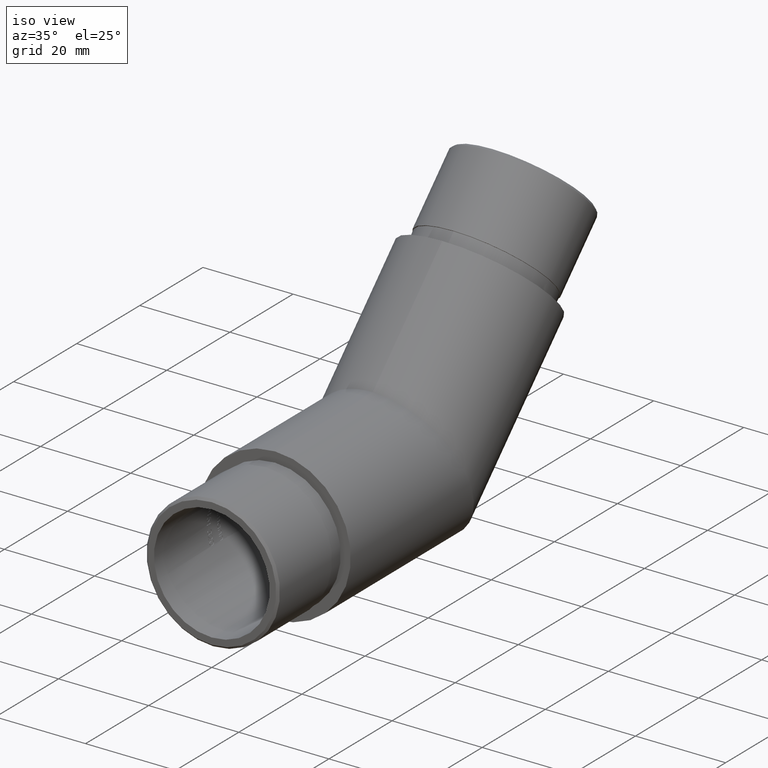
[diagram: clean part render]
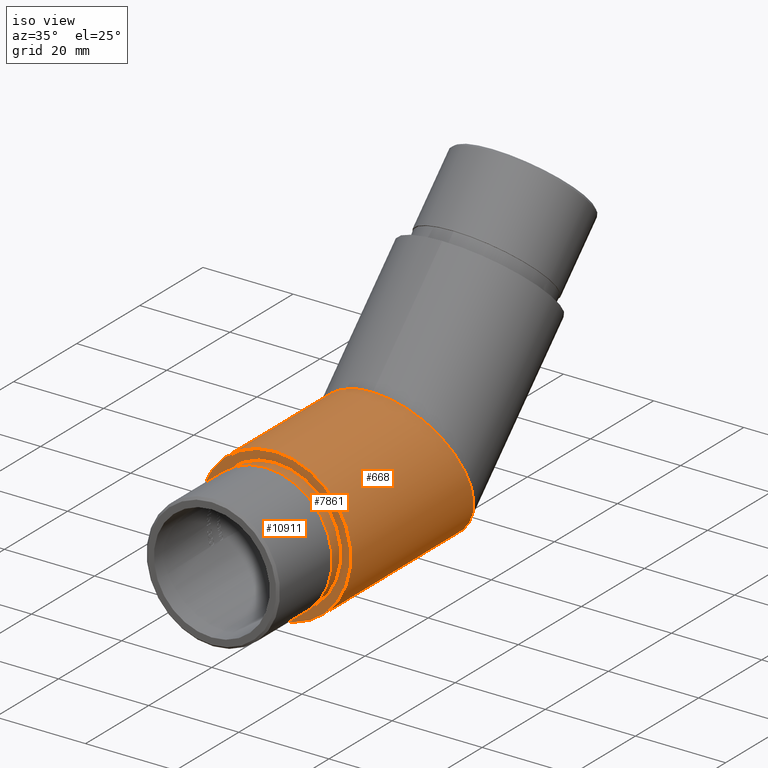
[diagram: same view with one multi-face feature highlighted, each face labeled with its STEP entity id]
A machine part, iso view. The highlighted faces form ONE feature: a stepped (counterbored) hole: 2 coaxial cylindrical walls of radii 14.6 -> 16.85 mm joined by 1 annular planar shoulder face(s). The faces share edges in the B-rep.
Their STEP definitions:
[1] entity #668 (Cylinder):
#462 = CYLINDRICAL_SURFACE ( 'NONE', #7468, 16.85000000000000100 ) ;
#668 = ADVANCED_FACE ( 'NONE', ( #3793, #5854 ), #462, .T. ) ;
#1205 = CARTESIAN_POINT ( 'NONE',  ( 0.0000000000000000000, 31.04100294802666200, 16.85000000000000100 ) ) ;
#2065 = EDGE_CURVE ( 'NONE', #5363, #5363, #7766, .T. ) ;
#2304 = CARTESIAN_POINT ( 'NONE',  ( 0.0000000000000000000, 85.67949852598663100, 0.0000000000000000000 ) ) ;
#3092 = ORIENTED_EDGE ( 'NONE', *, *, #10503, .F. ) ;
#3793 = FACE_OUTER_BOUND ( 'NONE', #9192, .T. ) ;
#4179 = CARTESIAN_POINT ( 'NONE',  ( 0.0000000000000000000, 0.0000000000000000000, 0.0000000000000000000 ) ) ;
#5119 = CARTESIAN_POINT ( 'NONE',  ( 0.0000000000000000000, 0.0000000000000000000, 16.85000000000000100 ) ) ;
#5363 = VERTEX_POINT ( 'NONE', #5119 ) ;
#5681 = CARTESIAN_POINT ( 'NONE',  ( 2.063529856563290200E-015, 45.00000000000000700, -16.85000000000000100 ) ) ;
#5854 = FACE_OUTER_BOUND ( 'NONE', #6154, .T. ) ;
#6154 = EDGE_LOOP ( 'NONE', ( #3092 ) ) ;
#6269 = DIRECTION ( 'NONE',  ( -0.0000000000000000000, -1.000000000000000000, -0.0000000000000000000 ) ) ;
#6487 = CARTESIAN_POINT ( 'NONE',  ( 33.69999999999999600, 45.00000000000000700, -16.84999999999999800 ) ) ;
#6529 = CARTESIAN_POINT ( 'NONE',  ( 0.0000000000000000000, 31.04100294802666200, 16.85000000000000100 ) ) ;
#6735 = VERTEX_POINT ( 'NONE', #9693 ) ;
#6844 = DIRECTION ( 'NONE',  ( 0.0000000000000000000, 1.000000000000000000, 0.0000000000000000000 ) ) ;
#7217 = DIRECTION ( 'NONE',  ( 0.0000000000000000000, 0.0000000000000000000, -1.000000000000000000 ) ) ;
#7449 = CARTESIAN_POINT ( 'NONE',  ( -33.69999999999999600, 31.04100294802666600, 16.85000000000000100 ) ) ;
#7468 = AXIS2_PLACEMENT_3D ( 'NONE', #2304, #6269, #7217 ) ;
#7489 = CARTESIAN_POINT ( 'NONE',  ( -33.69999999999999600, 45.00000000000000700, -16.85000000000000500 ) ) ;
#7560 =( BOUNDED_CURVE ( )  B_SPLINE_CURVE ( 3, ( #6529, #10098, #6487, #5681, #7489, #7449, #1205 ),
 .UNSPECIFIED., .T., .F. ) 
 B_SPLINE_CURVE_WITH_KNOTS ( ( 4, 3, 4 ),
 ( 0.0000000000000000000, 3.141592653589793100, 6.283185307179586200 ),
 .UNSPECIFIED. ) 
 CURVE ( )  GEOMETRIC_REPRESENTATION_ITEM ( )  RATIONAL_B_SPLINE_CURVE ( ( 1.000000000000000000, 0.3333333333333333700, 0.3333333333333333700, 1.000000000000000000, 0.3333333333333333700, 0.3333333333333333700, 1.000000000000000000 ) ) 
 REPRESENTATION_ITEM ( '' )  );
#7766 = CIRCLE ( 'NONE', #10205, 16.85000000000000100 ) ;
#8682 = DIRECTION ( 'NONE',  ( 0.0000000000000000000, 0.0000000000000000000, 1.000000000000000000 ) ) ;
#9192 = EDGE_LOOP ( 'NONE', ( #10118 ) ) ;
#9693 = CARTESIAN_POINT ( 'NONE',  ( 0.0000000000000000000, 31.04100294802666200, 16.85000000000000100 ) ) ;
#10098 = CARTESIAN_POINT ( 'NONE',  ( 33.69999999999999600, 31.04100294802666600, 16.85000000000000100 ) ) ;
#10118 = ORIENTED_EDGE ( 'NONE', *, *, #2065, .T. ) ;
#10205 = AXIS2_PLACEMENT_3D ( 'NONE', #4179, #6844, #8682 ) ;
#10503 = EDGE_CURVE ( 'NONE', #6735, #6735, #7560, .T. ) ;
[2] entity #7861 (Cylinder):
#172 = AXIS2_PLACEMENT_3D ( 'NONE', #8659, #7775, #3396 ) ;
#735 = FACE_OUTER_BOUND ( 'NONE', #858, .T. ) ;
#858 = EDGE_LOOP ( 'NONE', ( #6696 ) ) ;
#913 = CIRCLE ( 'NONE', #172, 14.59999999999999800 ) ;
#1256 = DIRECTION ( 'NONE',  ( 0.0000000000000000000, 0.0000000000000000000, 1.000000000000000000 ) ) ;
#1519 = CARTESIAN_POINT ( 'NONE',  ( 0.0000000000000000000, -3.000000000000000000, 0.0000000000000000000 ) ) ;
#3396 = DIRECTION ( 'NONE',  ( 0.0000000000000000000, 0.0000000000000000000, 1.000000000000000000 ) ) ;
#3517 = FACE_OUTER_BOUND ( 'NONE', #4513, .T. ) ;
#3882 = ORIENTED_EDGE ( 'NONE', *, *, #4876, .T. ) ;
#4513 = EDGE_LOOP ( 'NONE', ( #3882 ) ) ;
#4876 = EDGE_CURVE ( 'NONE', #9077, #9077, #913, .T. ) ;
#5016 = CYLINDRICAL_SURFACE ( 'NONE', #5153, 14.59999999999999800 ) ;
#5153 = AXIS2_PLACEMENT_3D ( 'NONE', #11023, #5744, #1256 ) ;
#5744 = DIRECTION ( 'NONE',  ( -0.0000000000000000000, 1.000000000000000000, -0.0000000000000000000 ) ) ;
#6115 = CARTESIAN_POINT ( 'NONE',  ( 0.0000000000000000000, -3.000000000000000000, -14.59999999999999800 ) ) ;
#6696 = ORIENTED_EDGE ( 'NONE', *, *, #10587, .F. ) ;
#7007 = VERTEX_POINT ( 'NONE', #6115 ) ;
#7414 = CIRCLE ( 'NONE', #9937, 14.59999999999999800 ) ;
#7648 = DIRECTION ( 'NONE',  ( 0.0000000000000000000, -1.000000000000000000, 0.0000000000000000000 ) ) ;
#7775 = DIRECTION ( 'NONE',  ( -0.0000000000000000000, -1.000000000000000000, -0.0000000000000000000 ) ) ;
#7861 = ADVANCED_FACE ( 'NONE', ( #735, #3517 ), #5016, .T. ) ;
#8659 = CARTESIAN_POINT ( 'NONE',  ( 0.0000000000000000000, 0.0000000000000000000, 0.0000000000000000000 ) ) ;
#8839 = CARTESIAN_POINT ( 'NONE',  ( 0.0000000000000000000, 0.0000000000000000000, 14.59999999999999800 ) ) ;
#9077 = VERTEX_POINT ( 'NONE', #8839 ) ;
#9937 = AXIS2_PLACEMENT_3D ( 'NONE', #1519, #7648, #11163 ) ;
#10587 = EDGE_CURVE ( 'NONE', #7007, #7007, #7414, .T. ) ;
#11023 = CARTESIAN_POINT ( 'NONE',  ( 0.0000000000000000000, -3.000000000000000000, 0.0000000000000000000 ) ) ;
#11163 = DIRECTION ( 'NONE',  ( 0.0000000000000000000, 0.0000000000000000000, -1.000000000000000000 ) ) ;
[3] entity #10911 (Plane):
#172 = AXIS2_PLACEMENT_3D ( 'NONE', #8659, #7775, #3396 ) ;
#341 = DIRECTION ( 'NONE',  ( 0.0000000000000000000, -0.0000000000000000000, 1.000000000000000000 ) ) ;
#913 = CIRCLE ( 'NONE', #172, 14.59999999999999800 ) ;
#1047 = EDGE_LOOP ( 'NONE', ( #8483 ) ) ;
#2057 = FACE_OUTER_BOUND ( 'NONE', #1047, .T. ) ;
#2065 = EDGE_CURVE ( 'NONE', #5363, #5363, #7766, .T. ) ;
#3396 = DIRECTION ( 'NONE',  ( 0.0000000000000000000, 0.0000000000000000000, 1.000000000000000000 ) ) ;
#3855 = FACE_BOUND ( 'NONE', #10433, .T. ) ;
#3941 = CARTESIAN_POINT ( 'NONE',  ( 0.0000000000000000000, 0.0000000000000000000, 0.0000000000000000000 ) ) ;
#4179 = CARTESIAN_POINT ( 'NONE',  ( 0.0000000000000000000, 0.0000000000000000000, 0.0000000000000000000 ) ) ;
#4823 = DIRECTION ( 'NONE',  ( 0.0000000000000000000, 1.000000000000000000, 0.0000000000000000000 ) ) ;
#4876 = EDGE_CURVE ( 'NONE', #9077, #9077, #913, .T. ) ;
#5018 = ORIENTED_EDGE ( 'NONE', *, *, #4876, .F. ) ;
#5119 = CARTESIAN_POINT ( 'NONE',  ( 0.0000000000000000000, 0.0000000000000000000, 16.85000000000000100 ) ) ;
#5363 = VERTEX_POINT ( 'NONE', #5119 ) ;
#6844 = DIRECTION ( 'NONE',  ( 0.0000000000000000000, 1.000000000000000000, 0.0000000000000000000 ) ) ;
#7766 = CIRCLE ( 'NONE', #10205, 16.85000000000000100 ) ;
#7775 = DIRECTION ( 'NONE',  ( -0.0000000000000000000, -1.000000000000000000, -0.0000000000000000000 ) ) ;
#8483 = ORIENTED_EDGE ( 'NONE', *, *, #2065, .F. ) ;
#8659 = CARTESIAN_POINT ( 'NONE',  ( 0.0000000000000000000, 0.0000000000000000000, 0.0000000000000000000 ) ) ;
#8682 = DIRECTION ( 'NONE',  ( 0.0000000000000000000, 0.0000000000000000000, 1.000000000000000000 ) ) ;
#8839 = CARTESIAN_POINT ( 'NONE',  ( 0.0000000000000000000, 0.0000000000000000000, 14.59999999999999800 ) ) ;
#9077 = VERTEX_POINT ( 'NONE', #8839 ) ;
#9745 = AXIS2_PLACEMENT_3D ( 'NONE', #3941, #4823, #341 ) ;
#10205 = AXIS2_PLACEMENT_3D ( 'NONE', #4179, #6844, #8682 ) ;
#10433 = EDGE_LOOP ( 'NONE', ( #5018 ) ) ;
#10911 = ADVANCED_FACE ( 'NONE', ( #2057, #3855 ), #11110, .F. ) ;
#11110 = PLANE ( 'NONE',  #9745 ) ;